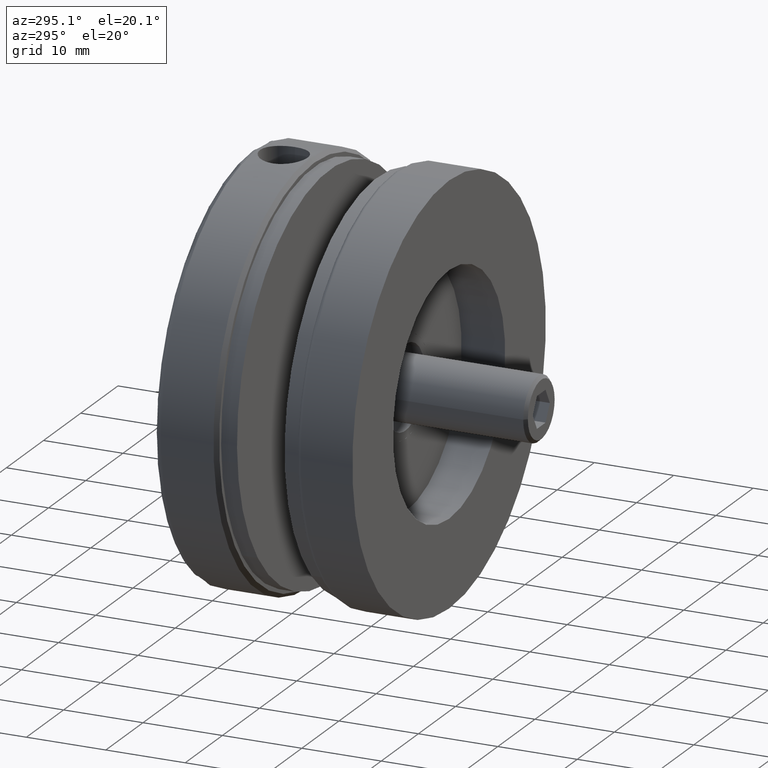
[diagram: clean part render]
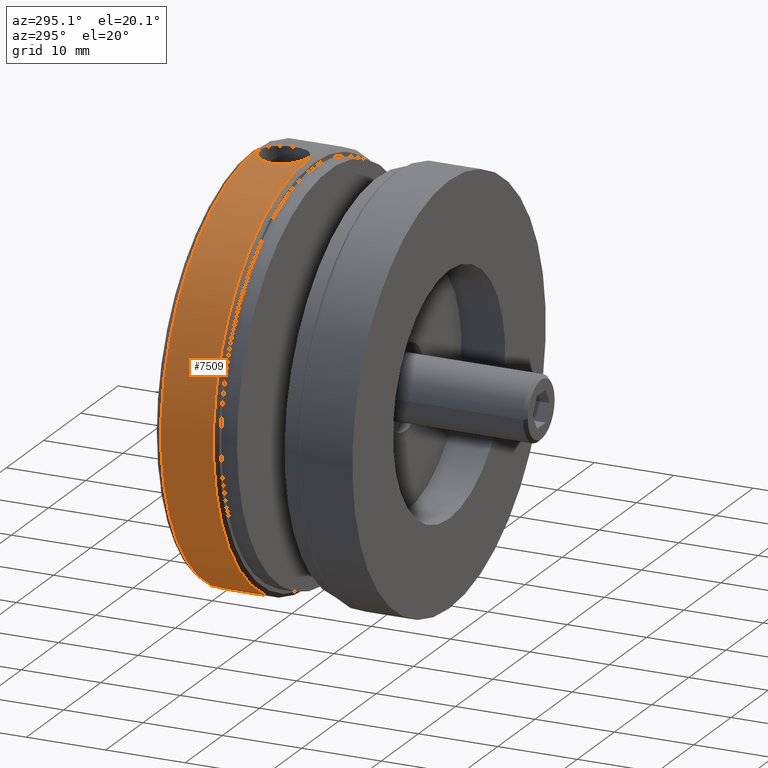
[diagram: same view with one face highlighted and labeled with its STEP entity id]
A machine part, auxiliary view. The second image highlights one B-rep face of the part: STEP entity #7509.
In plain terms, the highlighted cylindrical surface (partial cylindrical patch) has radius 26 mm, axis along (-0, -1, -0).
Its self-contained STEP definition (entity closure, byte-faithful):
#341 = AXIS2_PLACEMENT_3D ( 'NONE', #8758, #12299, #1063 ) ;
#576 = EDGE_CURVE ( 'NONE', #11621, #11155, #11716, .T. ) ;
#596 = CARTESIAN_POINT ( 'NONE',  ( 24.49652228154189600, 6.417069907275492600, 25.95700721619502000 ) ) ;
#638 = CARTESIAN_POINT ( 'NONE',  ( 23.00000000000000700, 3.617786016377761100, 25.82634314028991800 ) ) ;
#639 = VECTOR ( 'NONE', #4672, 1000.000000000000000 ) ;
#830 = CIRCLE ( 'NONE', #11395, 26.00000000000000000 ) ;
#836 = CARTESIAN_POINT ( 'NONE',  ( 23.00000000000000700, 3.813617122668469400, 25.82634314028991800 ) ) ;
#866 = CARTESIAN_POINT ( 'NONE',  ( 26.00000000000000400, 0.5000000000000108800, 26.00000000000000000 ) ) ;
#1063 = DIRECTION ( 'NONE',  ( 0.0000000000000000000, 0.0000000000000000000, -1.000000000000000000 ) ) ;
#1357 = LINE ( 'NONE', #12854, #639 ) ;
#1535 = CARTESIAN_POINT ( 'NONE',  ( 24.49477846400435500, 1.211220956580970800, 25.95690244308456900 ) ) ;
#1780 = CARTESIAN_POINT ( 'NONE',  ( 23.01900705157974900, 4.204373048745392100, 25.82857295578897800 ) ) ;
#1835 = CARTESIAN_POINT ( 'NONE',  ( 23.30322026353610800, 5.142372177249150400, 25.85987316931362700 ) ) ;
#1883 = CARTESIAN_POINT ( 'NONE',  ( 23.15359475711677800, 4.781185278078137200, 25.84383172970439800 ) ) ;
#1945 = EDGE_CURVE ( 'NONE', #7358, #7537, #3592, .T. ) ;
#2047 = ORIENTED_EDGE ( 'NONE', *, *, #7553, .T. ) ;
#2096 = EDGE_CURVE ( 'NONE', #2218, #11155, #7531, .T. ) ;
#2218 = VERTEX_POINT ( 'NONE', #836 ) ;
#2442 = CARTESIAN_POINT ( 'NONE',  ( 26.00000000000000400, 0.8136171226684787400, 26.00000000000000000 ) ) ;
#2586 = CARTESIAN_POINT ( 'NONE',  ( 25.22050513527462500, 0.9100202137047133100, 25.98902498854664200 ) ) ;
#2790 = CARTESIAN_POINT ( 'NONE',  ( 23.73971903034452400, 5.795888812514252000, 25.90193779591930900 ) ) ;
#3314 = DIRECTION ( 'NONE',  ( 0.0000000000000000000, 0.0000000000000000000, 1.000000000000000000 ) ) ;
#3318 = ORIENTED_EDGE ( 'NONE', *, *, #9477, .T. ) ;
#3575 = CARTESIAN_POINT ( 'NONE',  ( 26.00000000000000400, 0.8136171226684787400, 26.00000000000000000 ) ) ;
#3592 = LINE ( 'NONE', #12718, #11325 ) ;
#4366 = DIRECTION ( 'NONE',  ( 0.0000000000000000000, 0.0000000000000000000, -1.000000000000000000 ) ) ;
#4554 = CARTESIAN_POINT ( 'NONE',  ( 26.00000000000000000, 0.5000000000000108800, 0.0000000000000000000 ) ) ;
#4597 = ORIENTED_EDGE ( 'NONE', *, *, #576, .F. ) ;
#4672 = DIRECTION ( 'NONE',  ( -0.0000000000000000000, -1.000000000000000000, -0.0000000000000000000 ) ) ;
#4928 = CARTESIAN_POINT ( 'NONE',  ( 24.01849766978464000, 1.552461194530588800, 25.92476356952452600 ) ) ;
#5127 = CARTESIAN_POINT ( 'NONE',  ( 23.00000000000001100, 4.009538263905409600, 25.82634314028991100 ) ) ;
#5166 = CARTESIAN_POINT ( 'NONE',  ( 25.22278472343112200, 6.717786910356800000, 25.98908932575800500 ) ) ;
#5439 = CARTESIAN_POINT ( 'NONE',  ( 26.00000000000000400, 6.813617122668460100, 26.00000000000000000 ) ) ;
#5469 = EDGE_CURVE ( 'NONE', #7358, #2218, #12679, .T. ) ;
#5615 = VECTOR ( 'NONE', #6533, 1000.000000000000000 ) ;
#5729 = ORIENTED_EDGE ( 'NONE', *, *, #1945, .F. ) ;
#5737 = VERTEX_POINT ( 'NONE', #11520 ) ;
#5834 = CYLINDRICAL_SURFACE ( 'NONE', #341, 26.00000000000000000 ) ;
#6027 = FACE_OUTER_BOUND ( 'NONE', #8330, .T. ) ;
#6086 = CARTESIAN_POINT ( 'NONE',  ( 23.39753322466205200, 2.308520076871203800, 25.86965524079897000 ) ) ;
#6131 = CARTESIAN_POINT ( 'NONE',  ( 23.09639409942242600, 3.034166546608291400, 25.83738696666055300 ) ) ;
#6291 = CARTESIAN_POINT ( 'NONE',  ( 26.00000000000000400, 6.813617122668460100, 26.00000000000000000 ) ) ;
#6342 = CARTESIAN_POINT ( 'NONE',  ( 23.00000000000000700, 3.813617122668469400, 25.82634314028991800 ) ) ;
#6533 = DIRECTION ( 'NONE',  ( -0.0000000000000000000, -1.000000000000000000, -0.0000000000000000000 ) ) ;
#7299 = CARTESIAN_POINT ( 'NONE',  ( 23.01962479803510000, 3.418858865120717000, 25.82864410197218100 ) ) ;
#7358 = VERTEX_POINT ( 'NONE', #3575 ) ;
#7509 = ADVANCED_FACE ( 'NONE', ( #6027 ), #5834, .T. ) ;
#7531 = B_SPLINE_CURVE_WITH_KNOTS ( 'NONE', 3,
 ( #6342, #5127, #1780, #7549, #1883, #1835, #9849, #10859, #2790, #13152, #14436, #596, #13097, #9801, #5166, #10953, #8611, #6291 ),
 .UNSPECIFIED., .F., .F.,
 ( 4, 2, 2, 2, 2, 2, 2, 2, 4 ),
 ( 0.009387178300455652900, 0.009974009739566849400, 0.01056084117867804600, 0.01114767261778924200, 0.01173450405690043900, 0.01232133549601163400, 0.01290816693512283000, 0.01349499837423402700, 0.01408182981334522300 ),
 .UNSPECIFIED. ) ;
#7537 = VERTEX_POINT ( 'NONE', #866 ) ;
#7549 = CARTESIAN_POINT ( 'NONE',  ( 23.09596626280138700, 4.591818385522633300, 25.83733902599601300 ) ) ;
#7553 = EDGE_CURVE ( 'NONE', #11621, #8074, #830, .T. ) ;
#7691 = CARTESIAN_POINT ( 'NONE',  ( 26.00000000000000400, 7.127234245336927300, 26.00000000000000000 ) ) ;
#7940 = DIRECTION ( 'NONE',  ( -0.0000000000000000000, -1.000000000000000000, -0.0000000000000000000 ) ) ;
#8074 = VERTEX_POINT ( 'NONE', #9029 ) ;
#8138 = ORIENTED_EDGE ( 'NONE', *, *, #2096, .T. ) ;
#8170 = DIRECTION ( 'NONE',  ( -0.0000000000000000000, -1.000000000000000000, -0.0000000000000000000 ) ) ;
#8330 = EDGE_LOOP ( 'NONE', ( #4597, #2047, #12053, #3318, #5729, #12985, #8138 ) ) ;
#8611 = CARTESIAN_POINT ( 'NONE',  ( 25.80156951079812100, 6.813617122668461900, 26.00000000000000400 ) ) ;
#8661 = EDGE_CURVE ( 'NONE', #8074, #5737, #1357, .T. ) ;
#8758 = CARTESIAN_POINT ( 'NONE',  ( 26.00000000000000000, 0.0000000000000000000, 0.0000000000000000000 ) ) ;
#9029 = CARTESIAN_POINT ( 'NONE',  ( 26.00000000000000000, 7.127234245336927300, -26.00000000000000000 ) ) ;
#9454 = CARTESIAN_POINT ( 'NONE',  ( 25.60528152055120200, 0.8332338292213449200, 25.99771585007838200 ) ) ;
#9477 = EDGE_CURVE ( 'NONE', #5737, #7537, #12088, .T. ) ;
#9549 = CARTESIAN_POINT ( 'NONE',  ( 23.15313601589822000, 2.847177734870333800, 25.84378240702911000 ) ) ;
#9801 = CARTESIAN_POINT ( 'NONE',  ( 25.03213932405851200, 6.660006526189654600, 25.98261566936023200 ) ) ;
#9849 = CARTESIAN_POINT ( 'NONE',  ( 23.39637733682472400, 5.316962798584542700, 25.86954340129436100 ) ) ;
#10450 = CARTESIAN_POINT ( 'NONE',  ( 25.80418906227097200, 0.8136171226684784100, 25.99999999999999600 ) ) ;
#10600 = CARTESIAN_POINT ( 'NONE',  ( 25.03346960839980500, 0.9667800223433796700, 25.98266504074123200 ) ) ;
#10697 = CARTESIAN_POINT ( 'NONE',  ( 23.30358338820628500, 2.483964126617843600, 25.85991224079242200 ) ) ;
#10745 = CARTESIAN_POINT ( 'NONE',  ( 23.61466128725253800, 1.983778425003062600, 25.89057849527514300 ) ) ;
#10859 = CARTESIAN_POINT ( 'NONE',  ( 23.61560490475652300, 5.644889692024093200, 25.89066987919454400 ) ) ;
#10953 = CARTESIAN_POINT ( 'NONE',  ( 25.60649764490423800, 6.794124065855787500, 25.99773035218449700 ) ) ;
#11155 = VERTEX_POINT ( 'NONE', #5439 ) ;
#11199 = CARTESIAN_POINT ( 'NONE',  ( 26.00000000000000000, 7.127234245336927300, 0.0000000000000000000 ) ) ;
#11325 = VECTOR ( 'NONE', #8170, 1000.000000000000000 ) ;
#11395 = AXIS2_PLACEMENT_3D ( 'NONE', #11199, #7940, #4366 ) ;
#11520 = CARTESIAN_POINT ( 'NONE',  ( 26.00000000000000000, 0.5000000000000108800, -26.00000000000000000 ) ) ;
#11621 = VERTEX_POINT ( 'NONE', #7691 ) ;
#11716 = LINE ( 'NONE', #13432, #5615 ) ;
#11763 = CARTESIAN_POINT ( 'NONE',  ( 24.67015631846103200, 1.117290314519079800, 25.96660508037033600 ) ) ;
#11805 = CARTESIAN_POINT ( 'NONE',  ( 24.17001765813564500, 1.428387090542287500, 25.93602978369471800 ) ) ;
#12053 = ORIENTED_EDGE ( 'NONE', *, *, #8661, .T. ) ;
#12088 = CIRCLE ( 'NONE', #13871, 26.00000000000000000 ) ;
#12299 = DIRECTION ( 'NONE',  ( -0.0000000000000000000, -1.000000000000000000, -0.0000000000000000000 ) ) ;
#12679 = B_SPLINE_CURVE_WITH_KNOTS ( 'NONE', 3,
 ( #2442, #10450, #9454, #2586, #10600, #11763, #1535, #11805, #4928, #12952, #10745, #6086, #10697, #9549, #6131, #7299, #638, #13147 ),
 .UNSPECIFIED., .F., .F.,
 ( 4, 2, 2, 2, 2, 2, 2, 2, 4 ),
 ( 0.004694684199950884200, 0.005281245962513980400, 0.005867807725077076600, 0.006454369487640172800, 0.007040931250203268100, 0.007627493012766365200, 0.008214054775329460500, 0.008800616537892557600, 0.009387178300455652900 ),
 .UNSPECIFIED. ) ;
#12718 = CARTESIAN_POINT ( 'NONE',  ( 26.00000000000000400, 0.0000000000000000000, 26.00000000000000000 ) ) ;
#12854 = CARTESIAN_POINT ( 'NONE',  ( 26.00000000000000000, 0.0000000000000000000, -26.00000000000000000 ) ) ;
#12952 = CARTESIAN_POINT ( 'NONE',  ( 23.73859520420279900, 1.832398819313841400, 25.90184869792000600 ) ) ;
#12985 = ORIENTED_EDGE ( 'NONE', *, *, #5469, .T. ) ;
#13097 = CARTESIAN_POINT ( 'NONE',  ( 24.66878460883325600, 6.509271497181712700, 25.96653494196017700 ) ) ;
#13147 = CARTESIAN_POINT ( 'NONE',  ( 23.00000000000000700, 3.813617122668469400, 25.82634314028991800 ) ) ;
#13152 = CARTESIAN_POINT ( 'NONE',  ( 24.01629386406388600, 6.072639274042860100, 25.92458604513694500 ) ) ;
#13432 = CARTESIAN_POINT ( 'NONE',  ( 26.00000000000000400, 0.0000000000000000000, 26.00000000000000000 ) ) ;
#13871 = AXIS2_PLACEMENT_3D ( 'NONE', #4554, #14775, #3314 ) ;
#14436 = CARTESIAN_POINT ( 'NONE',  ( 24.17058170928723700, 6.199333025533614500, 25.93607328778021100 ) ) ;
#14775 = DIRECTION ( 'NONE',  ( 0.0000000000000000000, 1.000000000000000000, 0.0000000000000000000 ) ) ;